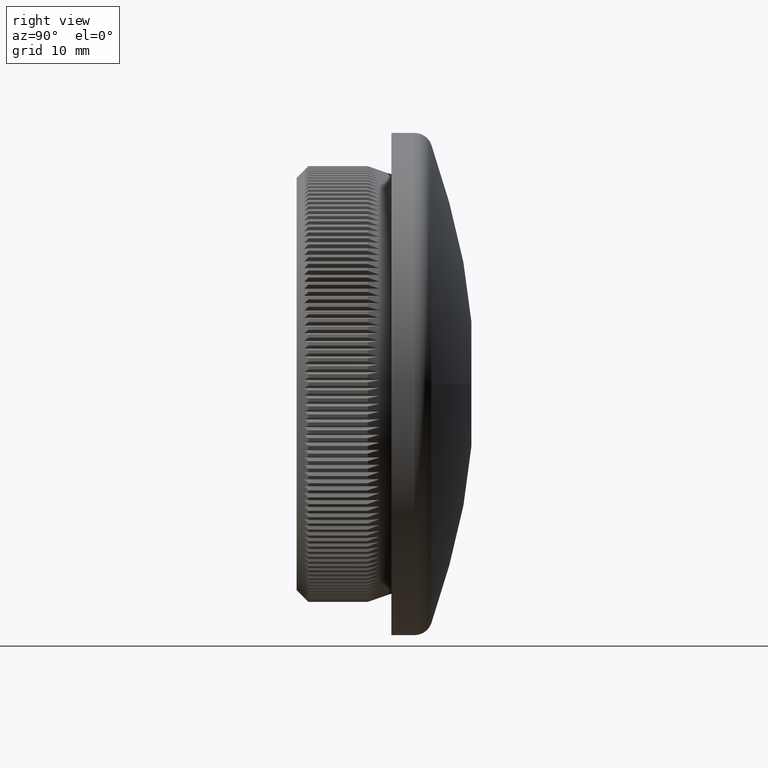
[diagram: clean part render]
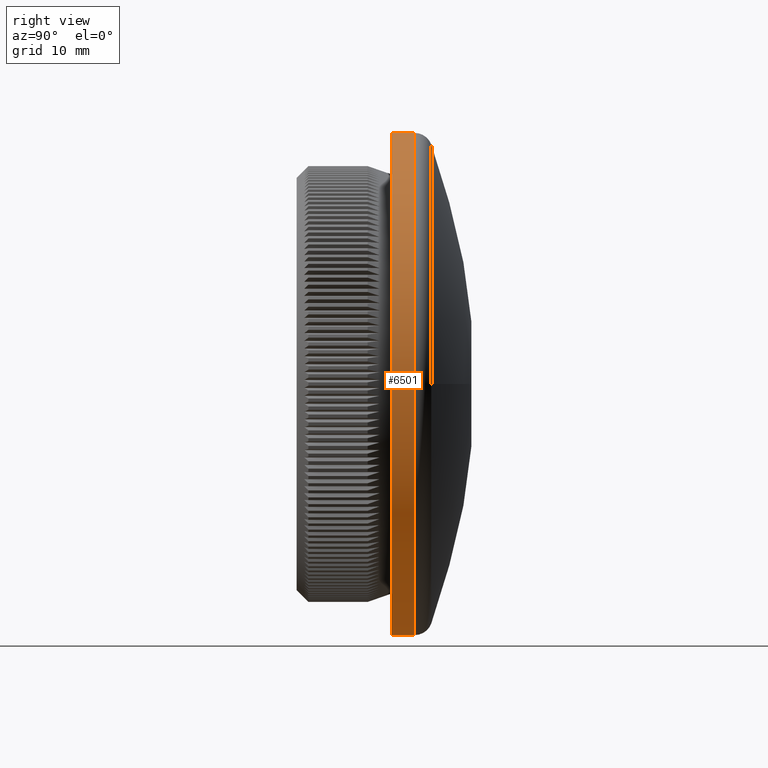
[diagram: same view with one face highlighted and labeled with its STEP entity id]
A machine part, right view. The second image highlights one B-rep face of the part: STEP entity #6501.
In plain terms, the highlighted cylindrical surface (partial cylindrical patch) has radius 21.2 mm, axis along (-0, -1, -0).
Its self-contained STEP definition (entity closure, byte-faithful):
#306 = DIRECTION ( 'NONE',  ( 0.0000000000000000000, 0.0000000000000000000, -1.000000000000000000 ) ) ;
#633 = DIRECTION ( 'NONE',  ( -0.0000000000000000000, -1.000000000000000000, -0.0000000000000000000 ) ) ;
#1534 = CARTESIAN_POINT ( 'NONE',  ( 2.596251214192389200E-015, 9.966330070852492900, 21.20000000000000300 ) ) ;
#2804 = DIRECTION ( 'NONE',  ( 0.0000000000000000000, 0.0000000000000000000, -1.000000000000000000 ) ) ;
#4001 = VERTEX_POINT ( 'NONE', #4690 ) ;
#4690 = CARTESIAN_POINT ( 'NONE',  ( 0.0000000000000000000, 9.966330070852492900, -21.20000000000000300 ) ) ;
#5413 = ORIENTED_EDGE ( 'NONE', *, *, #28710, .F. ) ;
#5578 = CARTESIAN_POINT ( 'NONE',  ( 2.596251214192389200E-015, 0.0000000000000000000, 21.20000000000000300 ) ) ;
#5949 = LINE ( 'NONE', #5578, #10754 ) ;
#6244 = LINE ( 'NONE', #30256, #9196 ) ;
#6501 = ADVANCED_FACE ( 'NONE', ( #9936 ), #15888, .T. ) ;
#7886 = DIRECTION ( 'NONE',  ( -0.0000000000000000000, -1.000000000000000000, -0.0000000000000000000 ) ) ;
#9196 = VECTOR ( 'NONE', #22993, 1000.000000000000000 ) ;
#9378 = ORIENTED_EDGE ( 'NONE', *, *, #26457, .T. ) ;
#9936 = FACE_OUTER_BOUND ( 'NONE', #10673, .T. ) ;
#9947 = CIRCLE ( 'NONE', #17061, 21.19999999999999900 ) ;
#10009 = VERTEX_POINT ( 'NONE', #10093 ) ;
#10093 = CARTESIAN_POINT ( 'NONE',  ( 2.596251214192388800E-015, 8.000000000000000000, 21.19999999999999900 ) ) ;
#10121 = CARTESIAN_POINT ( 'NONE',  ( 0.0000000000000000000, 8.000000000000000000, 0.0000000000000000000 ) ) ;
#10582 = AXIS2_PLACEMENT_3D ( 'NONE', #15903, #15582, #13611 ) ;
#10673 = EDGE_LOOP ( 'NONE', ( #25862, #9378, #5413, #17701 ) ) ;
#10754 = VECTOR ( 'NONE', #633, 1000.000000000000000 ) ;
#11393 = CARTESIAN_POINT ( 'NONE',  ( 0.0000000000000000000, 8.000000000000000000, -21.19999999999999900 ) ) ;
#11655 = EDGE_CURVE ( 'NONE', #4001, #24635, #15926, .T. ) ;
#13611 = DIRECTION ( 'NONE',  ( 0.0000000000000000000, 0.0000000000000000000, -1.000000000000000000 ) ) ;
#14879 = DIRECTION ( 'NONE',  ( -0.0000000000000000000, -1.000000000000000000, -0.0000000000000000000 ) ) ;
#15582 = DIRECTION ( 'NONE',  ( -0.0000000000000000000, -1.000000000000000000, -0.0000000000000000000 ) ) ;
#15888 = CYLINDRICAL_SURFACE ( 'NONE', #10582, 21.20000000000000300 ) ;
#15903 = CARTESIAN_POINT ( 'NONE',  ( 0.0000000000000000000, 0.0000000000000000000, 0.0000000000000000000 ) ) ;
#15926 = CIRCLE ( 'NONE', #29944, 21.20000000000000300 ) ;
#17061 = AXIS2_PLACEMENT_3D ( 'NONE', #10121, #14879, #306 ) ;
#17701 = ORIENTED_EDGE ( 'NONE', *, *, #28704, .F. ) ;
#20861 = VERTEX_POINT ( 'NONE', #11393 ) ;
#21927 = CARTESIAN_POINT ( 'NONE',  ( 0.0000000000000000000, 9.966330070852492900, 0.0000000000000000000 ) ) ;
#22993 = DIRECTION ( 'NONE',  ( -0.0000000000000000000, -1.000000000000000000, -0.0000000000000000000 ) ) ;
#24635 = VERTEX_POINT ( 'NONE', #1534 ) ;
#25862 = ORIENTED_EDGE ( 'NONE', *, *, #11655, .T. ) ;
#26457 = EDGE_CURVE ( 'NONE', #24635, #10009, #5949, .T. ) ;
#28704 = EDGE_CURVE ( 'NONE', #4001, #20861, #6244, .T. ) ;
#28710 = EDGE_CURVE ( 'NONE', #20861, #10009, #9947, .T. ) ;
#29944 = AXIS2_PLACEMENT_3D ( 'NONE', #21927, #7886, #2804 ) ;
#30256 = CARTESIAN_POINT ( 'NONE',  ( 0.0000000000000000000, 0.0000000000000000000, -21.20000000000000300 ) ) ;